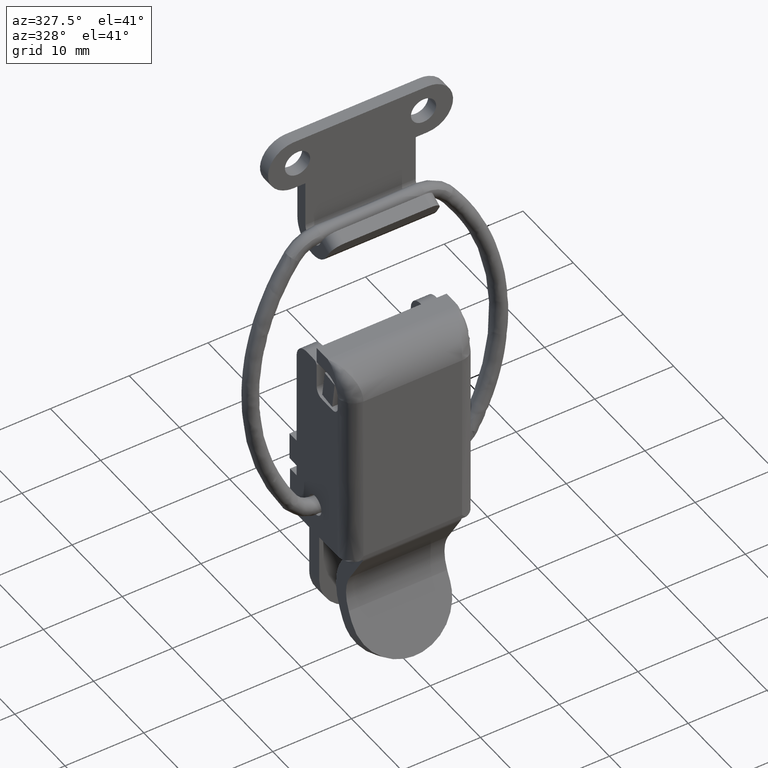
[diagram: clean part render]
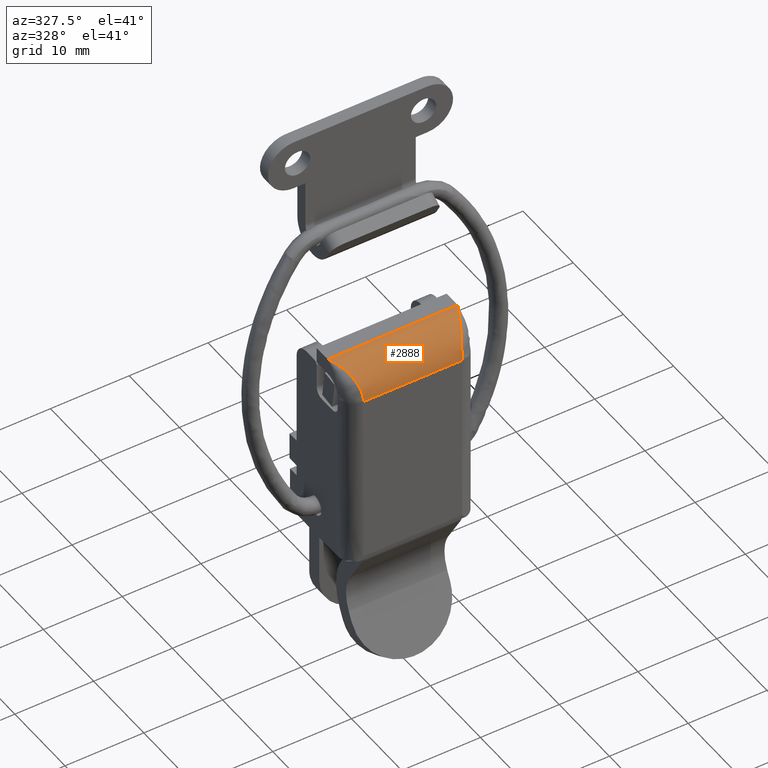
[diagram: same view with one face highlighted and labeled with its STEP entity id]
A machine part, auxiliary view. The second image highlights one B-rep face of the part: STEP entity #2888.
In plain terms, the highlighted face is a freeform B-spline surface patch.
Its self-contained STEP definition (entity closure, byte-faithful):
#1289=CARTESIAN_POINT('',(-8.250000000000000,-2.500000000000000,22.500000000000000));
#1290=VERTEX_POINT('',#1289);
#1291=CARTESIAN_POINT('',(-6.250000000000000,-6.500000000000200,18.500000000000000));
#1292=VERTEX_POINT('',#1291);
#1293=CARTESIAN_POINT('',(-8.249999999999979,-2.499999999999983,22.500000000000000));
#1294=CARTESIAN_POINT('',(-8.203370804927872,-2.597906429108443,22.497931978834949));
#1295=CARTESIAN_POINT('',(-8.111886526999665,-2.789994217835341,22.493874619004220));
#1296=CARTESIAN_POINT('',(-7.978638031096576,-3.071660960619523,22.461958074933978));
#1297=CARTESIAN_POINT('',(-7.851695839952336,-3.339950701302566,22.413916847442469));
#1298=CARTESIAN_POINT('',(-7.731143817256839,-3.594045078511460,22.350310533628569));
#1299=CARTESIAN_POINT('',(-7.616960446527306,-3.833353980293825,22.273902866591190));
#1300=CARTESIAN_POINT('',(-7.509150687651492,-4.057548377695550,22.186796757194070));
#1301=CARTESIAN_POINT('',(-7.407712715742841,-4.266514710116358,22.091131248941139));
#1302=CARTESIAN_POINT('',(-7.312646438238115,-4.460329454262536,21.988888479236049));
#1303=CARTESIAN_POINT('',(-7.223950667930863,-4.639229577793356,21.881929411470150));
#1304=CARTESIAN_POINT('',(-7.141626072017577,-4.803585956107868,21.771976838043958));
#1305=CARTESIAN_POINT('',(-7.065666541441278,-4.953876687938697,21.660616581658189));
#1306=CARTESIAN_POINT('',(-6.996088004906129,-5.090667047076133,21.549294454441061));
#1307=CARTESIAN_POINT('',(-6.932830410465495,-5.214575139565384,21.439328031148431));
#1308=CARTESIAN_POINT('',(-6.824548036500706,-5.427769885522676,21.234284390849950));
#1309=CARTESIAN_POINT('',(-6.682558541994981,-5.706988905372128,20.912741506963680));
#1310=CARTESIAN_POINT('',(-6.525444608630497,-6.008018019701629,20.447314437544250));
#1311=CARTESIAN_POINT('',(-6.402881101375108,-6.235459368705080,19.962815098563940));
#1312=CARTESIAN_POINT('',(-6.315810220969076,-6.390499393296162,19.471214480331479));
#1313=CARTESIAN_POINT('',(-6.260674639200930,-6.483320583761914,18.982845850324420));
#1314=CARTESIAN_POINT('',(-6.253504763071891,-6.494523711669138,18.658530913671822));
#1315=CARTESIAN_POINT('',(-6.250000000000000,-6.500000000000200,18.500000000000000));
#1316=B_SPLINE_CURVE_WITH_KNOTS('',3,(#1293,#1294,#1295,#1296,#1297,#1298,#1299,#1300,#1301,#1302,#1303,#1304,#1305,#1306,#1307,#1308,#1309,#1310,#1311,#1312,#1313,#1314,#1315),.UNSPECIFIED.,.F.,.U.,(4,1,1,1,1,1,1,1,1,1,1,1,1,1,1,1,1,1,1,1,4),(0.0,0.048940559570846,0.096019065883883,0.141236168508837,0.184592611718122,0.226089250992737,0.265727073379147,0.303507222824445,0.339431032018863,0.373500062850062,0.405716158408092,0.436081510713142,0.464598750195478,0.491271065815957,0.516102369219359,0.606765560779984,0.693111931367081,0.775349080434628,0.853717341462190,0.928494432752002,1.0),.UNSPECIFIED.);
#1317=EDGE_CURVE('',#1290,#1292,#1316,.T.);
#1748=CARTESIAN_POINT('',(8.250000000000000,-2.500000000000000,22.500000000000000));
#1749=VERTEX_POINT('',#1748);
#1764=CARTESIAN_POINT('',(6.250000000000000,-6.500000000000200,18.500000000000000));
#1765=VERTEX_POINT('',#1764);
#1766=CARTESIAN_POINT('',(6.250000000000000,-6.500000000000200,18.500000000000000));
#1767=CARTESIAN_POINT('',(6.251022895422331,-6.498408885155742,18.585609832672588));
#1768=CARTESIAN_POINT('',(6.253093264053438,-6.495188424696094,18.758886502219021));
#1769=CARTESIAN_POINT('',(6.269348445893988,-6.468744152948911,19.020501674852429));
#1770=CARTESIAN_POINT('',(6.295147347241618,-6.425296158404300,19.285532125051230));
#1771=CARTESIAN_POINT('',(6.331498258336977,-6.362320753869422,19.552595889834588));
#1772=CARTESIAN_POINT('',(6.378118056088185,-6.279400946903910,19.820168239084840));
#1773=CARTESIAN_POINT('',(6.435083809215513,-6.175667054754903,20.086582052913819));
#1774=CARTESIAN_POINT('',(6.502370492034222,-6.050532498876417,20.350032767248369));
#1775=CARTESIAN_POINT('',(6.579990513655486,-5.903517319045966,20.608581482909930));
#1776=CARTESIAN_POINT('',(6.667912630423881,-5.734312038694548,20.860175291989751));
#1777=CARTESIAN_POINT('',(6.766248312881970,-5.542830357278464,21.102613750771901));
#1778=CARTESIAN_POINT('',(6.874636870069763,-5.328904266111454,21.333894639586202));
#1779=CARTESIAN_POINT('',(6.999463827016735,-5.084091593980088,21.559659861827171));
#1780=CARTESIAN_POINT('',(7.145416608449019,-4.796806727374243,21.782402826303159));
#1781=CARTESIAN_POINT('',(7.316673144307171,-4.453152616503876,21.999421807248421));
#1782=CARTESIAN_POINT('',(7.513398282288370,-4.049762891233232,22.197769070170661));
#1783=CARTESIAN_POINT('',(7.735632587291756,-3.585405024195003,22.360534176437511));
#1784=CARTESIAN_POINT('',(7.983107111975077,-3.061730601839774,22.476775297101849));
#1785=CARTESIAN_POINT('',(8.158675849615838,-2.692210329534895,22.492053080635479));
#1786=CARTESIAN_POINT('',(8.249999999999981,-2.499999999999984,22.500000000000000));
#1787=B_SPLINE_CURVE_WITH_KNOTS('',3,(#1766,#1767,#1768,#1769,#1770,#1771,#1772,#1773,#1774,#1775,#1776,#1777,#1778,#1779,#1780,#1781,#1782,#1783,#1784,#1785,#1786),.UNSPECIFIED.,.F.,.U.,(4,1,1,1,1,1,1,1,1,1,1,1,1,1,1,1,1,1,4),(0.0,0.038630846171935,0.078189901293617,0.118734038553187,0.160316087613077,0.202985021379173,0.246786165543214,0.291761421125914,0.337949492164332,0.385386112460005,0.434104266863950,0.484134403889492,0.535606389979863,0.594458675903278,0.660713667736978,0.734386441212251,0.815487353789971,0.904023570046173,1.0),.UNSPECIFIED.);
#1788=EDGE_CURVE('',#1765,#1749,#1787,.T.);
#2124=CARTESIAN_POINT('',(8.250000000000000,-2.500000000000000,22.500000000000000));
#2125=CARTESIAN_POINT('',(-8.250000000000000,-2.500000000000000,22.500000000000000));
#2126=QUASI_UNIFORM_CURVE('',1,(#2124,#2125),.UNSPECIFIED.,.F.,.U.);
#2127=EDGE_CURVE('',#1749,#1290,#2126,.T.);
#2477=CARTESIAN_POINT('',(6.250000000000000,-6.500000000000200,18.500000000000000));
#2478=CARTESIAN_POINT('',(-6.250000000000000,-6.500000000000200,18.500000000000000));
#2479=QUASI_UNIFORM_CURVE('',1,(#2477,#2478),.UNSPECIFIED.,.F.,.U.);
#2480=EDGE_CURVE('',#1765,#1292,#2479,.T.);
#2485=CARTESIAN_POINT('',(8.662499999999998,-2.395257903602831,22.496997281846550));
#2486=CARTESIAN_POINT('',(8.572211914062498,-2.395302160776182,22.497858086659420));
#2487=CARTESIAN_POINT('',(8.436779785156247,-2.395367936842622,22.499415691210050));
#2488=CARTESIAN_POINT('',(8.256203613281247,-2.395381942166437,22.500612987503899));
#2489=CARTESIAN_POINT('',(8.143343505859379,-2.395381997129420,22.500395436941361));
#2490=CARTESIAN_POINT('',(8.053055419921877,-2.395374710835514,22.500153000511119));
#2491=CARTESIAN_POINT('',(7.962767333984377,-2.395364196978082,22.499813076516709));
#2492=CARTESIAN_POINT('',(7.804763183593749,-2.395337591651823,22.499228414947599));
#2493=CARTESIAN_POINT('',(7.488754882812494,-2.395302704543673,22.498764358942552));
#2494=CARTESIAN_POINT('',(7.037314453124998,-2.395288453591298,22.498605717239322));
#2495=CARTESIAN_POINT('',(5.953857421874999,-2.395286482812871,22.498556874244571));
#2496=CARTESIAN_POINT('',(3.606367187500005,-2.395287102713528,22.498577230582811));
#2497=CARTESIAN_POINT('',(0.717148437499997,-2.395286798762810,22.498588782194592));
#2498=CARTESIAN_POINT('',(-2.172070312500000,-2.395275116978511,22.498584710521691));
#2499=CARTESIAN_POINT('',(-4.338984374999998,-2.395280728427787,22.498695050714758));
#2500=CARTESIAN_POINT('',(-6.505898437500001,-2.395275168276157,22.498275914509929));
#2501=CARTESIAN_POINT('',(-7.950507812500000,-2.395313296882112,22.499257205465739));
#2502=CARTESIAN_POINT('',(-8.672812499999997,-2.395272399035556,22.497937846076649));
#2503=CARTESIAN_POINT('',(8.662499999999998,-2.442067000325028,22.497834843258300));
#2504=CARTESIAN_POINT('',(8.572211914062496,-2.442107643645395,22.498718785756729));
#2505=CARTESIAN_POINT('',(8.436779785156247,-2.442183309539570,22.499978455271460));
#2506=CARTESIAN_POINT('',(8.256203613281242,-2.442157305302850,22.501888298837081));
#2507=CARTESIAN_POINT('',(8.143343505859381,-2.442185000258848,22.501044909261999));
#2508=CARTESIAN_POINT('',(8.053055419921877,-2.442174430355899,22.500946315326310));
#2509=CARTESIAN_POINT('',(7.962767333984378,-2.442168764599277,22.500608712139929));
#2510=CARTESIAN_POINT('',(7.804763183593750,-2.442148714617527,22.500176009433400));
#2511=CARTESIAN_POINT('',(7.488754882812494,-2.442127188030898,22.499906145213000));
#2512=CARTESIAN_POINT('',(7.037314453124998,-2.442120392453050,22.499834992665718));
#2513=CARTESIAN_POINT('',(5.953857421874999,-2.442120082827921,22.499816284793361));
#2514=CARTESIAN_POINT('',(3.606367187500005,-2.442120224871038,22.499825972426301));
#2515=CARTESIAN_POINT('',(0.717148437499997,-2.442120271397057,22.499835674148859));
#2516=CARTESIAN_POINT('',(-2.172070312500000,-2.442113479028362,22.499824608682150));
#2517=CARTESIAN_POINT('',(-4.338984374999998,-2.442117603152669,22.499917724234930));
#2518=CARTESIAN_POINT('',(-6.505898437500002,-2.442110743417000,22.499564370610919));
#2519=CARTESIAN_POINT('',(-7.950507812500001,-2.442141458708784,22.500410902236649));
#2520=CARTESIAN_POINT('',(-8.672812499999997,-2.442101047446319,22.499104254857130));
#2521=CARTESIAN_POINT('',(8.662499999999998,-2.512217443277506,22.497717941036750));
#2522=CARTESIAN_POINT('',(8.572211914062498,-2.512258611572344,22.498370448910009));
#2523=CARTESIAN_POINT('',(8.436779785156245,-2.512308906066182,22.500070151334810));
#2524=CARTESIAN_POINT('',(8.256203613281244,-2.512305715939819,22.500225814564072));
#2525=CARTESIAN_POINT('',(8.143343505859386,-2.512298192905912,22.500327352402959));
#2526=CARTESIAN_POINT('',(8.053055419921869,-2.512306767199403,22.500176915336649));
#2527=CARTESIAN_POINT('',(7.962767333984382,-2.512301698082891,22.500204759992901));
#2528=CARTESIAN_POINT('',(7.804763183593748,-2.512306669177344,22.500355079309180));
#2529=CARTESIAN_POINT('',(7.488754882812492,-2.512310005089107,22.500415360063279));
#2530=CARTESIAN_POINT('',(7.037314453124998,-2.512313681542893,22.500459601246071));
#2531=CARTESIAN_POINT('',(5.953857421874998,-2.512314118674514,22.500467327169520));
#2532=CARTESIAN_POINT('',(3.606367187500004,-2.512313955582194,22.500463341377870));
#2533=CARTESIAN_POINT('',(0.717148437499996,-2.512314232746841,22.500468865322102));
#2534=CARTESIAN_POINT('',(-2.172070312499999,-2.512314987886551,22.500449051891451));
#2535=CARTESIAN_POINT('',(-4.338984374999997,-2.512316523295441,22.500511152981751));
#2536=CARTESIAN_POINT('',(-6.505898437500002,-2.512308873484059,22.500275470163881));
#2537=CARTESIAN_POINT('',(-7.950507812500001,-2.512325189501046,22.500870935296120));
#2538=CARTESIAN_POINT('',(-8.672812499999997,-2.512322056774595,22.500837660697240));
#2539=CARTESIAN_POINT('',(8.662499999999998,-2.605567767730115,22.494985541795248));
#2540=CARTESIAN_POINT('',(8.572211914062496,-2.605601055085341,22.495374736300199));
#2541=CARTESIAN_POINT('',(8.436779785156245,-2.605631853729586,22.496807217475300));
#2542=CARTESIAN_POINT('',(8.256203613281251,-2.605657657198037,22.495056268395398));
#2543=CARTESIAN_POINT('',(8.143343505859376,-2.605622505331402,22.496170755547830));
#2544=CARTESIAN_POINT('',(8.053055419921876,-2.605620306907129,22.497055801415581));
#2545=CARTESIAN_POINT('',(7.962767333984376,-2.605649908902595,22.497750300595790));
#2546=CARTESIAN_POINT('',(7.804763183593747,-2.605685135264577,22.498360281229051));
#2547=CARTESIAN_POINT('',(7.488754882812491,-2.605727753945765,22.498820015038429));
#2548=CARTESIAN_POINT('',(7.037314453124998,-2.605732697925119,22.498858666148099));
#2549=CARTESIAN_POINT('',(5.953857421874998,-2.605731950740353,22.498879016511552));
#2550=CARTESIAN_POINT('',(3.606367187500004,-2.605731724104382,22.498853997713610));
#2551=CARTESIAN_POINT('',(0.717148437499996,-2.605732228096223,22.498861162365820));
#2552=CARTESIAN_POINT('',(-2.172070312499999,-2.605742450072494,22.498810316603070));
#2553=CARTESIAN_POINT('',(-4.338984374999997,-2.605743470504844,22.498902960642230));
#2554=CARTESIAN_POINT('',(-6.505898437500001,-2.605723344079763,22.498550220318339));
#2555=CARTESIAN_POINT('',(-7.950507812499993,-2.605717812144577,22.497660327896892));
#2556=CARTESIAN_POINT('',(-8.672812499999999,-2.605692049384602,22.497774620742341));
#2557=CARTESIAN_POINT('',(8.662499999999998,-2.675476061768127,22.491730313572329));
#2558=CARTESIAN_POINT('',(8.572211914062496,-2.675502237207251,22.492052569734820));
#2559=CARTESIAN_POINT('',(8.436779785156245,-2.675515084263406,22.492580589393551));
#2560=CARTESIAN_POINT('',(8.256203613281249,-2.675542534207837,22.491625847941741));
#2561=CARTESIAN_POINT('',(8.143343505859383,-2.675499940313192,22.492510278776599));
#2562=CARTESIAN_POINT('',(8.053055419921872,-2.675516880799305,22.493939732979719));
#2563=CARTESIAN_POINT('',(7.962767333984373,-2.675569469074437,22.495144360449220));
#2564=CARTESIAN_POINT('',(7.804763183593747,-2.675636360083338,22.495991840772898));
#2565=CARTESIAN_POINT('',(7.488754882812490,-2.675697933402486,22.496494344724379));
#2566=CARTESIAN_POINT('',(7.037314453124998,-2.675695512126076,22.496451830152811));
#2567=CARTESIAN_POINT('',(5.953857421874998,-2.675692744648024,22.496461037952219));
#2568=CARTESIAN_POINT('',(3.606367187500004,-2.675692675301915,22.496422620064269));
#2569=CARTESIAN_POINT('',(0.717148437499996,-2.675693351476944,22.496432913747469));
#2570=CARTESIAN_POINT('',(-2.172070312499999,-2.675710205690582,22.496350041673420));
#2571=CARTESIAN_POINT('',(-4.338984374999997,-2.675712966186917,22.496499675860409));
#2572=CARTESIAN_POINT('',(-6.505898437500001,-2.675675291847963,22.495928895441342));
#2573=CARTESIAN_POINT('',(-7.950507812500004,-2.675592007625922,22.495061586759700));
#2574=CARTESIAN_POINT('',(-8.672812499999999,-2.675644557858833,22.495217858729930));
#2575=CARTESIAN_POINT('',(8.662499999999998,-2.745267936683804,22.487352572421191));
#2576=CARTESIAN_POINT('',(8.572211914062498,-2.745283979906005,22.487554381386300));
#2577=CARTESIAN_POINT('',(8.436779785156245,-2.745293051622060,22.487641731258069));
#2578=CARTESIAN_POINT('',(8.256203613281253,-2.745276705991039,22.486856597440621));
#2579=CARTESIAN_POINT('',(8.143343505859363,-2.745263796196622,22.488303872861749));
#2580=CARTESIAN_POINT('',(8.053055419921876,-2.745300717611011,22.490264549975318));
#2581=CARTESIAN_POINT('',(7.962767333984371,-2.745384325742529,22.491532300516319));
#2582=CARTESIAN_POINT('',(7.804763183593749,-2.745492264269178,22.492715641701110));
#2583=CARTESIAN_POINT('',(7.488754882812491,-2.745560407798775,22.493041046723469));
#2584=CARTESIAN_POINT('',(7.037314453124998,-2.745541420719281,22.492847037624440));
#2585=CARTESIAN_POINT('',(5.953857421874998,-2.745535486319844,22.492818492211530));
#2586=CARTESIAN_POINT('',(3.606367187500004,-2.745535855609719,22.492772592049668));
#2587=CARTESIAN_POINT('',(0.717148437499996,-2.745536572607679,22.492783191164381));
#2588=CARTESIAN_POINT('',(-2.172070312499999,-2.745559936349808,22.492670492659869));
#2589=CARTESIAN_POINT('',(-4.338984374999996,-2.745565316706829,22.492871791836439));
#2590=CARTESIAN_POINT('',(-6.505898437500000,-2.745506656923094,22.492102105648701));
#2591=CARTESIAN_POINT('',(-7.950507812499997,-2.745591905383638,22.494136297689678));
#2592=CARTESIAN_POINT('',(-8.672812500000001,-2.745480743043244,22.491486175485541));
#2593=CARTESIAN_POINT('',(8.662499999999998,-2.814931654828936,22.481921192898621));
#2594=CARTESIAN_POINT('',(8.572211914062498,-2.814941909696299,22.482050294571259));
#2595=CARTESIAN_POINT('',(8.436779785156247,-2.814935520424508,22.481888037560260));
#2596=CARTESIAN_POINT('',(8.256203613281247,-2.814929648611535,22.481736849351080));
#2597=CARTESIAN_POINT('',(8.143343505859376,-2.814934130469013,22.483489066288559));
#2598=CARTESIAN_POINT('',(8.053055419921874,-2.814977311038397,22.485136941848278));
#2599=CARTESIAN_POINT('',(7.962767333984370,-2.815078882264829,22.486894334712900));
#2600=CARTESIAN_POINT('',(7.804763183593748,-2.815239335944581,22.488345984710708));
#2601=CARTESIAN_POINT('',(7.488754882812491,-2.815294556587874,22.488426474478160));
#2602=CARTESIAN_POINT('',(7.037314453124997,-2.815255955401281,22.488052510372722));
#2603=CARTESIAN_POINT('',(5.953857421874999,-2.815244337693219,22.487953425820159));
#2604=CARTESIAN_POINT('',(3.606367187500004,-2.815246072431726,22.487909722823129));
#2605=CARTESIAN_POINT('',(0.717148437499996,-2.815246207459976,22.487912878279811));
#2606=CARTESIAN_POINT('',(-2.172070312499999,-2.815276758650546,22.487783897191878));
#2607=CARTESIAN_POINT('',(-4.338984374999996,-2.815282934324234,22.487990752498138));
#2608=CARTESIAN_POINT('',(-6.505898437499998,-2.815210093874728,22.487195876012610));
#2609=CARTESIAN_POINT('',(-7.950507812499998,-2.815312218364933,22.489313932703499));
#2610=CARTESIAN_POINT('',(-8.672812500000001,-2.815185644831174,22.486591241466328));
#2611=CARTESIAN_POINT('',(8.662499999999996,-2.884454769730286,22.475470279911960));
#2612=CARTESIAN_POINT('',(8.572211914062498,-2.884459910307549,22.475577747867419));
#2613=CARTESIAN_POINT('',(8.436779785156247,-2.884449905786386,22.475365134916778));
#2614=CARTESIAN_POINT('',(8.256203613281249,-2.884449498402262,22.476008537665880));
#2615=CARTESIAN_POINT('',(8.143343505859374,-2.884469556416924,22.477365495015359));
#2616=CARTESIAN_POINT('',(8.053055419921870,-2.884536676638706,22.479358202226560));
#2617=CARTESIAN_POINT('',(7.962767333984373,-2.884674405343258,22.481123769507771));
#2618=CARTESIAN_POINT('',(7.804763183593747,-2.884851983642524,22.482805191027531));
#2619=CARTESIAN_POINT('',(7.488754882812492,-2.884883906325434,22.482599368939010));
#2620=CARTESIAN_POINT('',(7.037314453124997,-2.884822323108478,22.482068577513932));
#2621=CARTESIAN_POINT('',(5.953857421874999,-2.884804287917535,22.481870619147600));
#2622=CARTESIAN_POINT('',(3.606367187500005,-2.884807739202900,22.481838155149671));
#2623=CARTESIAN_POINT('',(0.717148437499996,-2.884806726205583,22.481824475031139));
#2624=CARTESIAN_POINT('',(-2.172070312499999,-2.884845679480656,22.481698929739728));
#2625=CARTESIAN_POINT('',(-4.338984374999996,-2.884848587211371,22.481841887070001));
#2626=CARTESIAN_POINT('',(-6.505898437499996,-2.884776948809112,22.481284236510660));
#2627=CARTESIAN_POINT('',(-7.950507812499997,-2.884869577082971,22.483007085966040));
#2628=CARTESIAN_POINT('',(-8.672812500000001,-2.884743691335468,22.480530896576902));
#2629=CARTESIAN_POINT('',(8.662499999999998,-2.976946370857471,22.465510381180330));
#2630=CARTESIAN_POINT('',(8.572211914062500,-2.976947905133711,22.465617942828739));
#2631=CARTESIAN_POINT('',(8.436779785156247,-2.976939033659828,22.465651844024102));
#2632=CARTESIAN_POINT('',(8.256203613281249,-2.976951421801565,22.466753509932470));
#2633=CARTESIAN_POINT('',(8.143343505859372,-2.976964731185928,22.468035309079362));
#2634=CARTESIAN_POINT('',(8.053055419921872,-2.977089562008799,22.469841216355189));
#2635=CARTESIAN_POINT('',(7.962767333984369,-2.977285573511047,22.472151116904762));
#2636=CARTESIAN_POINT('',(7.804763183593747,-2.977465076650089,22.473705777349871));
#2637=CARTESIAN_POINT('',(7.488754882812491,-2.977450439078036,22.473190467893179));
#2638=CARTESIAN_POINT('',(7.037314453124997,-2.977358434914222,22.472485747218460));
#2639=CARTESIAN_POINT('',(5.953857421874999,-2.977332038540537,22.472149855912900));
#2640=CARTESIAN_POINT('',(3.606367187500005,-2.977337736165453,22.472130007724800));
#2641=CARTESIAN_POINT('',(0.717148437499996,-2.977335070544680,22.472097386422739));
#2642=CARTESIAN_POINT('',(-2.172070312499999,-2.977385449042711,22.471968922349511));
#2643=CARTESIAN_POINT('',(-4.338984374999996,-2.977383603410137,22.472054154068299));
#2644=CARTESIAN_POINT('',(-6.505898437499997,-2.977315068058208,22.471707642705368));
#2645=CARTESIAN_POINT('',(-7.950507812500002,-2.977361494517802,22.472733361560781));
#2646=CARTESIAN_POINT('',(-8.672812500000001,-2.977270632233099,22.470883934429342));
#2647=CARTESIAN_POINT('',(8.662499999999996,-3.092138982920549,22.450462755784191));
#2648=CARTESIAN_POINT('',(8.572211914062498,-3.092141341199578,22.450651871028899));
#2649=CARTESIAN_POINT('',(8.436779785156247,-3.092142628354661,22.451028493576501));
#2650=CARTESIAN_POINT('',(8.256203613281247,-3.092176700846085,22.452420049366260));
#2651=CARTESIAN_POINT('',(8.143343505859374,-3.092263101297991,22.453922192205020));
#2652=CARTESIAN_POINT('',(8.053055419921872,-3.092365527142096,22.455292596142922));
#2653=CARTESIAN_POINT('',(7.962767333984374,-3.092588692733772,22.457211018648849));
#2654=CARTESIAN_POINT('',(7.804763183593743,-3.092773923568702,22.458533533261420));
#2655=CARTESIAN_POINT('',(7.488754882812493,-3.092703184174939,22.458467033025130));
#2656=CARTESIAN_POINT('',(7.037314453124997,-3.092572796488653,22.457401913092440));
#2657=CARTESIAN_POINT('',(5.953857421874999,-3.092544895230651,22.457025664972999));
#2658=CARTESIAN_POINT('',(3.606367187500005,-3.092550317244190,22.456965707400439));
#2659=CARTESIAN_POINT('',(0.717148437499996,-3.092546339432626,22.456931615260981));
#2660=CARTESIAN_POINT('',(-2.172070312499999,-3.092611984392033,22.456798524257071));
#2661=CARTESIAN_POINT('',(-4.338984374999996,-3.092600077866612,22.456792314409281));
#2662=CARTESIAN_POINT('',(-6.505898437499997,-3.092551387454130,22.456785815551900));
#2663=CARTESIAN_POINT('',(-7.950507812500003,-3.092514462315223,22.456957905128640));
#2664=CARTESIAN_POINT('',(-8.672812499999997,-3.092481575719247,22.455854762592530));
#2665=CARTESIAN_POINT('',(8.662499999999994,-3.275374808131061,22.420526853979901));
#2666=CARTESIAN_POINT('',(8.572211914062496,-3.275387284381911,22.420880567842850));
#2667=CARTESIAN_POINT('',(8.436779785156245,-3.275411125819169,22.421605244176149));
#2668=CARTESIAN_POINT('',(8.256203613281246,-3.275504625370732,22.423230855599162));
#2669=CARTESIAN_POINT('',(8.143343505859370,-3.275599746576752,22.424455425986601));
#2670=CARTESIAN_POINT('',(8.053055419921874,-3.275709436896853,22.425423767089789));
#2671=CARTESIAN_POINT('',(7.962767333984359,-3.275845676850492,22.426589574064469));
#2672=CARTESIAN_POINT('',(7.804763183593748,-3.276051899927557,22.427417106846899));
#2673=CARTESIAN_POINT('',(7.488754882812487,-3.275894574743044,22.427455629172240));
#2674=CARTESIAN_POINT('',(7.037314453124998,-3.275792330401935,22.426910522488601));
#2675=CARTESIAN_POINT('',(5.953857421874998,-3.275762111292028,22.426432545580660));
#2676=CARTESIAN_POINT('',(3.606367187500005,-3.275767935289426,22.426322637098309));
#2677=CARTESIAN_POINT('',(0.717148437499995,-3.275762256556674,22.426292848601829));
#2678=CARTESIAN_POINT('',(-2.172070312499999,-3.275849352330626,22.426119318105549));
#2679=CARTESIAN_POINT('',(-4.338984374999996,-3.275834866218906,22.426097462389510));
#2680=CARTESIAN_POINT('',(-6.505898437499997,-3.275766712682885,22.426132454803231));
#2681=CARTESIAN_POINT('',(-7.950507812499999,-3.275720743016596,22.426157477429779));
#2682=CARTESIAN_POINT('',(-8.672812499999996,-3.275693457681193,22.425402522510819));
#2683=CARTESIAN_POINT('',(8.662499999999994,-3.592757383452235,22.352019776687790));
#2684=CARTESIAN_POINT('',(8.572211914062496,-3.592792891989509,22.352521638090529));
#2685=CARTESIAN_POINT('',(8.436779785156244,-3.592864037000337,22.353423112393390));
#2686=CARTESIAN_POINT('',(8.256203613281246,-3.592979678092819,22.354614365857991));
#2687=CARTESIAN_POINT('',(8.143343505859368,-3.593047218127207,22.355241766552911));
#2688=CARTESIAN_POINT('',(8.053055419921872,-3.593071880214312,22.355563520294439));
#2689=CARTESIAN_POINT('',(7.962767333984369,-3.593098149807477,22.355882595008250));
#2690=CARTESIAN_POINT('',(7.804763183593741,-3.592936659304669,22.355222971009660));
#2691=CARTESIAN_POINT('',(7.488754882812494,-3.592845930604656,22.355390651984170));
#2692=CARTESIAN_POINT('',(7.037314453124998,-3.593002058455578,22.356344076703820));
#2693=CARTESIAN_POINT('',(5.953857421874997,-3.593023537801188,22.356407889755300));
#2694=CARTESIAN_POINT('',(3.606367187500004,-3.593015030206724,22.355980464426811));
#2695=CARTESIAN_POINT('',(0.717148437499995,-3.593012221274454,22.356061310309880));
#2696=CARTESIAN_POINT('',(-2.172070312500000,-3.593135536680600,22.355785674049560));
#2697=CARTESIAN_POINT('',(-4.338984374999996,-3.593120451248788,22.355759279159930));
#2698=CARTESIAN_POINT('',(-6.505898437499998,-3.593006105187170,22.355787180367031));
#2699=CARTESIAN_POINT('',(-7.950507812499994,-3.592966085807733,22.355667706811548));
#2700=CARTESIAN_POINT('',(-8.672812499999994,-3.592923425504425,22.355308539252210));
#2701=CARTESIAN_POINT('',(8.662499999999998,-4.033933383247812,22.205893247100239));
#2702=CARTESIAN_POINT('',(8.572211914062498,-4.033956239736755,22.206215298014889));
#2703=CARTESIAN_POINT('',(8.436779785156240,-4.033987716322145,22.206675463880039));
#2704=CARTESIAN_POINT('',(8.256203613281246,-4.034004382238354,22.207138040732399));
#2705=CARTESIAN_POINT('',(8.143343505859370,-4.034002334321278,22.207353050725100));
#2706=CARTESIAN_POINT('',(8.053055419921872,-4.033997252894730,22.207494857118188));
#2707=CARTESIAN_POINT('',(7.962767333984373,-4.033991711903630,22.207595453343249));
#2708=CARTESIAN_POINT('',(7.804763183593750,-4.033973127173345,22.207921017852929));
#2709=CARTESIAN_POINT('',(7.488754882812495,-4.034025335879455,22.208222002953800));
#2710=CARTESIAN_POINT('',(7.037314453124992,-4.034034415839458,22.208483657417158));
#2711=CARTESIAN_POINT('',(5.953857421874999,-4.034113268091223,22.209191377070692));
#2712=CARTESIAN_POINT('',(3.606367187500002,-4.034107576221253,22.208687610568081));
#2713=CARTESIAN_POINT('',(0.717148437499996,-4.034098122877884,22.208800242380221));
#2714=CARTESIAN_POINT('',(-2.172070312499999,-4.034279924743847,22.208418426752200));
#2715=CARTESIAN_POINT('',(-4.338984374999996,-4.034265226764254,22.208385896522220));
#2716=CARTESIAN_POINT('',(-6.505898437499996,-4.034081893627711,22.208331052962830));
#2717=CARTESIAN_POINT('',(-7.950507812499998,-4.034025095969501,22.208201054677559));
#2718=CARTESIAN_POINT('',(-8.672812499999996,-4.033968767556282,22.207986307594819));
#2719=CARTESIAN_POINT('',(8.662499999999998,-4.368581159010581,22.039634294950389));
#2720=CARTESIAN_POINT('',(8.572211914062498,-4.368595526071728,22.039872366699569));
#2721=CARTESIAN_POINT('',(8.436779785156240,-4.368615083440202,22.040215573324151));
#2722=CARTESIAN_POINT('',(8.256203613281246,-4.368634729472965,22.040607997891080));
#2723=CARTESIAN_POINT('',(8.143343505859370,-4.368644310953306,22.040822088723360));
#2724=CARTESIAN_POINT('',(8.053055419921870,-4.368650192509632,22.040973609260661));
#2725=CARTESIAN_POINT('',(7.962767333984372,-4.368655571839320,22.041114202367670));
#2726=CARTESIAN_POINT('',(7.804763183593748,-4.368662873274489,22.041317508740750));
#2727=CARTESIAN_POINT('',(7.488754882812491,-4.368683282667763,22.041571237063149));
#2728=CARTESIAN_POINT('',(7.037314453124997,-4.368738187607645,22.041845782791150));
#2729=CARTESIAN_POINT('',(5.953857421874999,-4.368741425518169,22.042366400262210));
#2730=CARTESIAN_POINT('',(3.606367187500002,-4.368798457762360,22.042304617752290));
#2731=CARTESIAN_POINT('',(0.717148437499997,-4.368762201565995,22.042275989274611));
#2732=CARTESIAN_POINT('',(-2.172070312499999,-4.368999000574548,22.041869621418051));
#2733=CARTESIAN_POINT('',(-4.338984374999996,-4.368986224932414,22.041818004800589));
#2734=CARTESIAN_POINT('',(-6.505898437499995,-4.368751944925341,22.041720166476331));
#2735=CARTESIAN_POINT('',(-7.950507812499994,-4.368651828310606,22.041602357731090));
#2736=CARTESIAN_POINT('',(-8.672812499999994,-4.368584616256715,22.041432191339180));
#2737=CARTESIAN_POINT('',(8.662499999999998,-5.175880905989690,21.564988018664121));
#2738=CARTESIAN_POINT('',(8.572211914062498,-5.175888584996958,21.565108250535829));
#2739=CARTESIAN_POINT('',(8.436779785156247,-5.175899707018933,21.565275558563339));
#2740=CARTESIAN_POINT('',(8.256203613281247,-5.175915041808608,21.565469890044881));
#2741=CARTESIAN_POINT('',(8.143343505859374,-5.175924921041020,21.565577060479860));
#2742=CARTESIAN_POINT('',(8.053055419921874,-5.175933099165414,21.565652690425509));
#2743=CARTESIAN_POINT('',(7.962767333984372,-5.175941112711119,21.565719248420841));
#2744=CARTESIAN_POINT('',(7.804763183593746,-5.175954739771183,21.565823642560741));
#2745=CARTESIAN_POINT('',(7.488754882812497,-5.175974332009965,21.565940834417962));
#2746=CARTESIAN_POINT('',(7.037314453125001,-5.175959938819965,21.565957849209859));
#2747=CARTESIAN_POINT('',(5.953857421874997,-5.176059703689128,21.566396531767349));
#2748=CARTESIAN_POINT('',(3.606367187500000,-5.176132586143209,21.567042651846769));
#2749=CARTESIAN_POINT('',(0.717148437499998,-5.176091458539248,21.566885599161871));
#2750=CARTESIAN_POINT('',(-2.172070312499998,-5.176443378986359,21.566366298554239));
#2751=CARTESIAN_POINT('',(-4.338984374999998,-5.176446462612033,21.566279592961219));
#2752=CARTESIAN_POINT('',(-6.505898437499996,-5.176083975732971,21.566089605613922));
#2753=CARTESIAN_POINT('',(-7.950507812499998,-5.175846469850089,21.566055026123550));
#2754=CARTESIAN_POINT('',(-8.672812499999997,-5.175739754668877,21.565933970480160));
#2755=CARTESIAN_POINT('',(8.662499999999998,-5.701802786251760,21.010825905111979));
#2756=CARTESIAN_POINT('',(8.572211914062498,-5.701812163799087,21.010914355143399));
#2757=CARTESIAN_POINT('',(8.436779785156247,-5.701825740054566,21.011036839071330));
#2758=CARTESIAN_POINT('',(8.256203613281249,-5.701842123095437,21.011178466866799));
#2759=CARTESIAN_POINT('',(8.143343505859376,-5.701851553187336,21.011259152556129));
#2760=CARTESIAN_POINT('',(8.053055419921876,-5.701858584392502,21.011319902534439));
#2761=CARTESIAN_POINT('',(7.962767333984373,-5.701865274508106,21.011379786439090));
#2762=CARTESIAN_POINT('',(7.804763183593748,-5.701877053609721,21.011474185716651));
#2763=CARTESIAN_POINT('',(7.488754882812496,-5.701896300148600,21.011676495203002));
#2764=CARTESIAN_POINT('',(7.037314453124995,-5.701952466413639,21.011828765445319));
#2765=CARTESIAN_POINT('',(5.953857421874993,-5.701923366866328,21.011999606427139));
#2766=CARTESIAN_POINT('',(3.606367187500003,-5.702208777807322,21.012547413539529));
#2767=CARTESIAN_POINT('',(0.717148437499998,-5.702135761505857,21.012600043954659));
#2768=CARTESIAN_POINT('',(-2.172070312499998,-5.702545601862583,21.012015158823679));
#2769=CARTESIAN_POINT('',(-4.338984374999997,-5.702729121321399,21.011982050561450));
#2770=CARTESIAN_POINT('',(-6.505898437499997,-5.701791102653466,21.011843360208459));
#2771=CARTESIAN_POINT('',(-7.950507812499998,-5.701789591231520,21.011781169044671));
#2772=CARTESIAN_POINT('',(-8.672812499999997,-5.701538471167234,21.011679433261310));
#2773=CARTESIAN_POINT('',(8.662499999999998,-6.220774109925758,20.013800870266031));
#2774=CARTESIAN_POINT('',(8.572211914062498,-6.220781830316347,20.013865125268051));
#2775=CARTESIAN_POINT('',(8.436779785156247,-6.220793762166234,20.013954994133599));
#2776=CARTESIAN_POINT('',(8.256203613281247,-6.220811088167267,20.014061381329459));
#2777=CARTESIAN_POINT('',(8.143343505859374,-6.220822680193417,20.014122083022642));
#2778=CARTESIAN_POINT('',(8.053055419921874,-6.220832479184820,20.014167056832761));
#2779=CARTESIAN_POINT('',(7.962767333984374,-6.220842794868465,20.014209421550280));
#2780=CARTESIAN_POINT('',(7.804763183593748,-6.220861041478874,20.014277920994282));
#2781=CARTESIAN_POINT('',(7.488754882812495,-6.220907518144530,20.014385694902689));
#2782=CARTESIAN_POINT('',(7.037314453124999,-6.220965047837050,20.014484925581360));
#2783=CARTESIAN_POINT('',(5.953857421875004,-6.221298468810943,20.014598657400938));
#2784=CARTESIAN_POINT('',(3.606367187500001,-6.221331003987232,20.014912026955670));
#2785=CARTESIAN_POINT('',(0.717148437499999,-6.221331279225092,20.014982265985410));
#2786=CARTESIAN_POINT('',(-2.172070312499997,-6.221489692914923,20.014621299967409));
#2787=CARTESIAN_POINT('',(-4.338984374999998,-6.222133092870204,20.014620183912399));
#2788=CARTESIAN_POINT('',(-6.505898437499997,-6.221332094582208,20.014602757849051));
#2789=CARTESIAN_POINT('',(-7.950507812499998,-6.220121498516842,20.014485716527510));
#2790=CARTESIAN_POINT('',(-8.672812499999997,-6.219865539479157,20.014402986986731));
#2791=CARTESIAN_POINT('',(8.662499999999996,-6.376416617474400,19.572121773617539));
#2792=CARTESIAN_POINT('',(8.572211914062498,-6.376422003774446,19.572179927077940));
#2793=CARTESIAN_POINT('',(8.436779785156247,-6.376430420984038,19.572261116292800));
#2794=CARTESIAN_POINT('',(8.256203613281247,-6.376443797256799,19.572356813085591));
#2795=CARTESIAN_POINT('',(8.143343505859374,-6.376453458432464,19.572411433990659));
#2796=CARTESIAN_POINT('',(8.053055419921874,-6.376462507061270,19.572452085463819));
#2797=CARTESIAN_POINT('',(7.962767333984373,-6.376471689723590,19.572490762114761));
#2798=CARTESIAN_POINT('',(7.804763183593748,-6.376495745753087,19.572553235016059));
#2799=CARTESIAN_POINT('',(7.488754882812495,-6.376527328984620,19.572657598963719));
#2800=CARTESIAN_POINT('',(7.037314453124999,-6.376771526551606,19.572756575533610));
#2801=CARTESIAN_POINT('',(5.953857421874998,-6.376588537864568,19.572833012008051));
#2802=CARTESIAN_POINT('',(3.606367187500004,-6.377274525429090,19.573045312796481));
#2803=CARTESIAN_POINT('',(0.717148437499999,-6.377017245647546,19.573106653767230));
#2804=CARTESIAN_POINT('',(-2.172070312500001,-6.377022677501690,19.572837639370061));
#2805=CARTESIAN_POINT('',(-4.338984374999997,-6.378204656204771,19.572897804674970));
#2806=CARTESIAN_POINT('',(-6.505898437499996,-6.375158857937811,19.572450833070992));
#2807=CARTESIAN_POINT('',(-7.950507812499998,-6.375532696748119,19.572781949351629));
#2808=CARTESIAN_POINT('',(-8.672812499999997,-6.375116700575963,19.572657824876000));
#2809=CARTESIAN_POINT('',(8.662499999999994,-6.468230948112923,19.022763521736401));
#2810=CARTESIAN_POINT('',(8.572211914062496,-6.468229178019596,19.022817420330369));
#2811=CARTESIAN_POINT('',(8.436779785156245,-6.468225427587045,19.022892939526930));
#2812=CARTESIAN_POINT('',(8.256203613281246,-6.468218080593131,19.022982547222760));
#2813=CARTESIAN_POINT('',(8.143343505859372,-6.468212678483861,19.023033879789409));
#2814=CARTESIAN_POINT('',(8.053055419921872,-6.468207458874047,19.023072124968941));
#2815=CARTESIAN_POINT('',(7.962767333984372,-6.468203813279051,19.023108490950360));
#2816=CARTESIAN_POINT('',(7.804763183593746,-6.468184477000861,19.023167214840100));
#2817=CARTESIAN_POINT('',(7.488754882812494,-6.468219545800248,19.023265404498382));
#2818=CARTESIAN_POINT('',(7.037314453124996,-6.467969389846231,19.023353825607611));
#2819=CARTESIAN_POINT('',(5.953857421875006,-6.470720305802033,19.023490070651381));
#2820=CARTESIAN_POINT('',(3.606367187500001,-6.468417678198281,19.023508544267951));
#2821=CARTESIAN_POINT('',(0.717148437499998,-6.469087417608871,19.023555255367679));
#2822=CARTESIAN_POINT('',(-2.172070312499993,-6.469169066639950,19.023437362347991));
#2823=CARTESIAN_POINT('',(-4.338984375000001,-6.468544576739542,19.023389414763631));
#2824=CARTESIAN_POINT('',(-6.505898437499996,-6.473281713857831,19.023769880671061));
#2825=CARTESIAN_POINT('',(-7.950507812500000,-6.465543679182886,19.023287892262051));
#2826=CARTESIAN_POINT('',(-8.672812499999997,-6.466309318773541,19.023239062695708));
#2827=CARTESIAN_POINT('',(8.662499999999994,-6.503856539187161,18.652692494284981));
#2828=CARTESIAN_POINT('',(8.572211914062496,-6.503850071498863,18.652744164301279));
#2829=CARTESIAN_POINT('',(8.436779785156245,-6.503838291167800,18.652816717873979));
#2830=CARTESIAN_POINT('',(8.256203613281246,-6.503816921700400,18.652903141315349));
#2831=CARTESIAN_POINT('',(8.143343505859372,-6.503801037947259,18.652952813971321));
#2832=CARTESIAN_POINT('',(8.053055419921872,-6.503785839570113,18.652989921273729));
#2833=CARTESIAN_POINT('',(7.962767333984371,-6.503772138555567,18.653025326843959));
#2834=CARTESIAN_POINT('',(7.804763183593745,-6.503725537719707,18.653082414983530));
#2835=CARTESIAN_POINT('',(7.488754882812493,-6.503728709272083,18.653180123912161));
#2836=CARTESIAN_POINT('',(7.037314453124993,-6.503180649578181,18.653261740505421));
#2837=CARTESIAN_POINT('',(5.953857421874995,-6.501453634929603,18.653257256314099));
#2838=CARTESIAN_POINT('',(3.606367187499998,-6.504451494520976,18.653352873266059));
#2839=CARTESIAN_POINT('',(0.717148437500012,-6.504931770950537,18.653381780105811));
#2840=CARTESIAN_POINT('',(-2.172070312500035,-6.504026319760324,18.653306573758790));
#2841=CARTESIAN_POINT('',(-4.338984374999988,-6.507236178577045,18.653436791503118));
#2842=CARTESIAN_POINT('',(-6.505898437500004,-6.490340450691373,18.652680088701139));
#2843=CARTESIAN_POINT('',(-7.950507812499997,-6.503271545632528,18.653303555868170));
#2844=CARTESIAN_POINT('',(-8.672812499999999,-6.501499853712935,18.653139052278860));
#2845=CARTESIAN_POINT('',(8.662499999999994,-6.501495624074049,18.372329458739738));
#2846=CARTESIAN_POINT('',(8.572211914062496,-6.501486774066567,18.372379972470050));
#2847=CARTESIAN_POINT('',(8.436779785156245,-6.501471074954932,18.372451049909770));
#2848=CARTESIAN_POINT('',(8.256203613281246,-6.501443724168654,18.372536057952338));
#2849=CARTESIAN_POINT('',(8.143343505859372,-6.501423717066976,18.372585073075609));
#2850=CARTESIAN_POINT('',(8.053055419921872,-6.501405278513658,18.372621798225929));
#2851=CARTESIAN_POINT('',(7.962767333984370,-6.501387247392014,18.372656870066859));
#2852=CARTESIAN_POINT('',(7.804763183593744,-6.501339670295116,18.372713869931861));
#2853=CARTESIAN_POINT('',(7.488754882812492,-6.501301597351715,18.372810784297990));
#2854=CARTESIAN_POINT('',(7.037314453124992,-6.500899353080630,18.372900985608279));
#2855=CARTESIAN_POINT('',(5.953857421875003,-6.505722317641691,18.373090829944712));
#2856=CARTESIAN_POINT('',(3.606367187500006,-6.501997741863304,18.372929915038341));
#2857=CARTESIAN_POINT('',(0.717148437499987,-6.502352637097883,18.372940432448971));
#2858=CARTESIAN_POINT('',(-2.172070312499974,-6.502799958285265,18.372991539222031));
#2859=CARTESIAN_POINT('',(-4.338984375000011,-6.499856887540808,18.372857198957039));
#2860=CARTESIAN_POINT('',(-6.505898437499988,-6.513852974679984,18.373508783704221));
#2861=CARTESIAN_POINT('',(-7.950507812500001,-6.497050908550483,18.372784089671772));
#2862=CARTESIAN_POINT('',(-8.672812499999999,-6.498802884268828,18.372766488575760));
#2863=CARTESIAN_POINT('',(8.662499999999996,-6.486731758525762,18.185503773996910));
#2864=CARTESIAN_POINT('',(8.572211914062496,-6.486722511161102,18.185553622635620));
#2865=CARTESIAN_POINT('',(8.436779785156245,-6.486706377973849,18.185623858548791));
#2866=CARTESIAN_POINT('',(8.256203613281246,-6.486679321548124,18.185708082070430));
#2867=CARTESIAN_POINT('',(8.143343505859370,-6.486660023411776,18.185756752255511));
#2868=CARTESIAN_POINT('',(8.053055419921870,-6.486642722754907,18.185793292953171));
#2869=CARTESIAN_POINT('',(7.962767333984369,-6.486625844635839,18.185828237859010));
#2870=CARTESIAN_POINT('',(7.804763183593742,-6.486584094623420,18.185885206958758));
#2871=CARTESIAN_POINT('',(7.488754882812492,-6.486549564259229,18.185982566593388));
#2872=CARTESIAN_POINT('',(7.037314453124991,-6.486258639443572,18.186076359314580));
#2873=CARTESIAN_POINT('',(5.953857421874999,-6.488479225151542,18.186197246990648));
#2874=CARTESIAN_POINT('',(3.606367187500002,-6.487178819350515,18.186067991746128));
#2875=CARTESIAN_POINT('',(0.717148437499999,-6.487704080026618,18.186082517483399));
#2876=CARTESIAN_POINT('',(-2.172070312499997,-6.487617654533857,18.186156482548881));
#2877=CARTESIAN_POINT('',(-4.338984375000001,-6.487098929326713,18.186131885777439));
#2878=CARTESIAN_POINT('',(-6.505898437499996,-6.489301888671831,18.186234866856939));
#2879=CARTESIAN_POINT('',(-7.950507812500000,-6.482722521445731,18.185987750513320));
#2880=CARTESIAN_POINT('',(-8.672812499999999,-6.483823520474426,18.185942027647979));
#2881=B_SPLINE_SURFACE_WITH_KNOTS('',3,3,((#2485,#2503,#2521,#2539,#2557,#2575,#2593,#2611,#2629,#2647,#2665,#2683,#2701,#2719,#2737,#2755,#2773,#2791,#2809,#2827,#2845,#2863),(#2486,#2504,#2522,#2540,#2558,#2576,#2594,#2612,#2630,#2648,#2666,#2684,#2702,#2720,#2738,#2756,#2774,#2792,#2810,#2828,#2846,#2864),(#2487,#2505,#2523,#2541,#2559,#2577,#2595,#2613,#2631,#2649,#2667,#2685,#2703,#2721,#2739,#2757,#2775,#2793,#2811,#2829,#2847,#2865),(#2488,#2506,#2524,#2542,#2560,#2578,#2596,#2614,#2632,#2650,#2668,#2686,#2704,#2722,#2740,#2758,#2776,#2794,#2812,#2830,#2848,#2866),(#2489,#2507,#2525,#2543,#2561,#2579,#2597,#2615,#2633,#2651,#2669,#2687,#2705,#2723,#2741,#2759,#2777,#2795,#2813,#2831,#2849,#2867),(#2490,#2508,#2526,#2544,#2562,#2580,#2598,#2616,#2634,#2652,#2670,#2688,#2706,#2724,#2742,#2760,#2778,#2796,#2814,#2832,#2850,#2868),(#2491,#2509,#2527,#2545,#2563,#2581,#2599,#2617,#2635,#2653,#2671,#2689,#2707,#2725,#2743,#2761,#2779,#2797,#2815,#2833,#2851,#2869),(#2492,#2510,#2528,#2546,#2564,#2582,#2600,#2618,#2636,#2654,#2672,#2690,#2708,#2726,#2744,#2762,#2780,#2798,#2816,#2834,#2852,#2870),(#2493,#2511,#2529,#2547,#2565,#2583,#2601,#2619,#2637,#2655,#2673,#2691,#2709,#2727,#2745,#2763,#2781,#2799,#2817,#2835,#2853,#2871),(#2494,#2512,#2530,#2548,#2566,#2584,#2602,#2620,#2638,#2656,#2674,#2692,#2710,#2728,#2746,#2764,#2782,#2800,#2818,#2836,#2854,#2872),(#2495,#2513,#2531,#2549,#2567,#2585,#2603,#2621,#2639,#2657,#2675,#2693,#2711,#2729,#2747,#2765,#2783,#2801,#2819,#2837,#2855,#2873),(#2496,#2514,#2532,#2550,#2568,#2586,#2604,#2622,#2640,#2658,#2676,#2694,#2712,#2730,#2748,#2766,#2784,#2802,#2820,#2838,#2856,#2874),(#2497,#2515,#2533,#2551,#2569,#2587,#2605,#2623,#2641,#2659,#2677,#2695,#2713,#2731,#2749,#2767,#2785,#2803,#2821,#2839,#2857,#2875),(#2498,#2516,#2534,#2552,#2570,#2588,#2606,#2624,#2642,#2660,#2678,#2696,#2714,#2732,#2750,#2768,#2786,#2804,#2822,#2840,#2858,#2876),(#2499,#2517,#2535,#2553,#2571,#2589,#2607,#2625,#2643,#2661,#2679,#2697,#2715,#2733,#2751,#2769,#2787,#2805,#2823,#2841,#2859,#2877),(#2500,#2518,#2536,#2554,#2572,#2590,#2608,#2626,#2644,#2662,#2680,#2698,#2716,#2734,#2752,#2770,#2788,#2806,#2824,#2842,#2860,#2878),(#2501,#2519,#2537,#2555,#2573,#2591,#2609,#2627,#2645,#2663,#2681,#2699,#2717,#2735,#2753,#2771,#2789,#2807,#2825,#2843,#2861,#2879),(#2502,#2520,#2538,#2556,#2574,#2592,#2610,#2628,#2646,#2664,#2682,#2700,#2718,#2736,#2754,#2772,#2790,#2808,#2826,#2844,#2862,#2880)),.UNSPECIFIED.,.F.,.F.,.U.,(4,1,1,1,1,1,1,1,1,1,1,1,1,1,1,4),(4,1,1,1,1,1,1,1,1,1,1,1,2,2,1,1,1,4),(0.0,0.270864257812500,0.406296386718750,0.541728515625000,0.609444580078125,0.677160644531250,0.812592773437500,1.083457031250000,1.625185546875000,2.166914062500000,4.333828125000000,8.667656250000000,10.834570312500000,13.001484375000000,15.168398437500000,17.335312500000001),(0.0,0.140540834702391,0.210811252053587,0.281081669404783,0.351352086755979,0.421622504107174,0.491892921458370,0.562163338809566,0.702704173511957,0.843245008214349,1.124326677619131,1.686490016428697,2.248653355238263,4.497306710476526,5.621633388095657,5.902715057500441,6.183796726905223,6.745960065714789),.UNSPECIFIED.);
#2882=ORIENTED_EDGE('',*,*,#2480,.F.);
#2883=ORIENTED_EDGE('',*,*,#1788,.T.);
#2884=ORIENTED_EDGE('',*,*,#2127,.T.);
#2885=ORIENTED_EDGE('',*,*,#1317,.T.);
#2886=EDGE_LOOP('',(#2882,#2883,#2884,#2885));
#2887=FACE_OUTER_BOUND('',#2886,.T.);
#2888=ADVANCED_FACE('',(#2887),#2881,.T.);